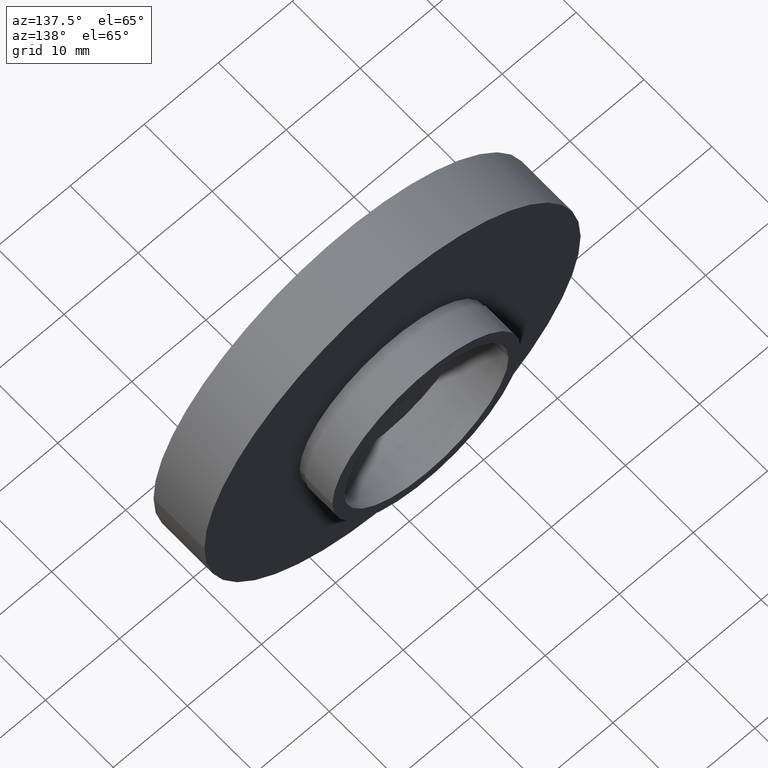
[diagram: clean part render]
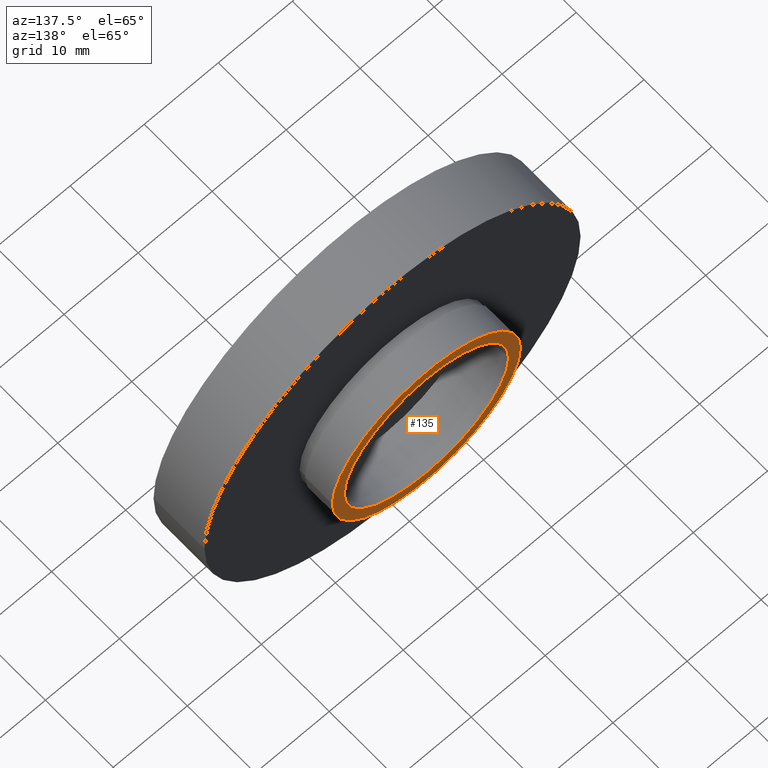
[diagram: same view with one face highlighted and labeled with its STEP entity id]
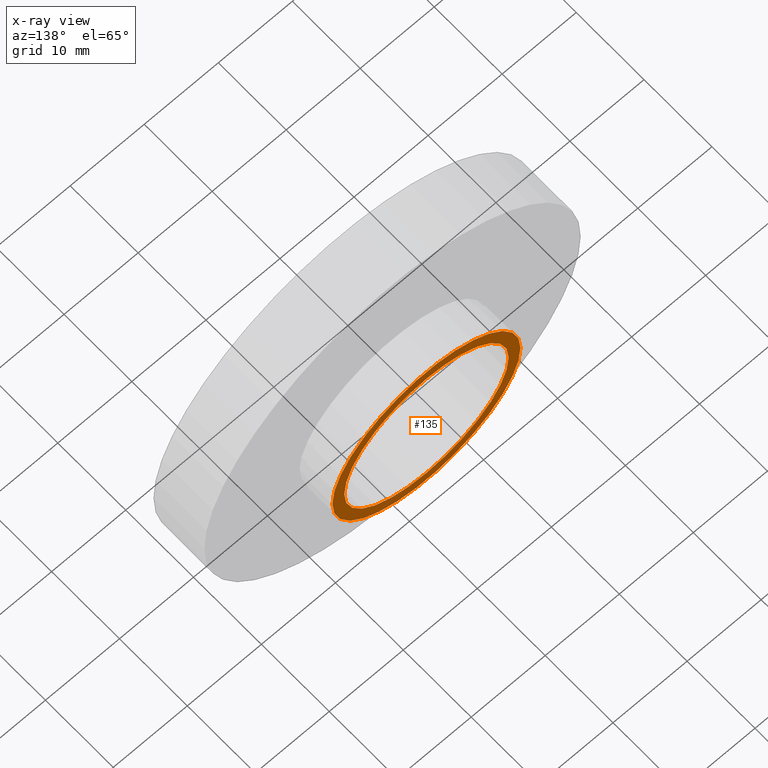
[diagram: x-ray of the same camera — body ghosted, the highlighted face saturated]
A machine part, auxiliary view. The second image highlights one B-rep face of the part: STEP entity #135.
The next image is the same camera in x-ray: the body ghosted, the highlighted face saturated — about 0% of this face is hidden behind the body in this view.
In plain terms, the highlighted planar face has unit normal (0, -1, 0).
Its self-contained STEP definition (entity closure, byte-faithful):
#41 = EDGE_LOOP ( 'NONE', ( #357, #198 ) ) ;
#51 = VERTEX_POINT ( 'NONE', #334 ) ;
#59 = EDGE_CURVE ( 'NONE', #582, #51, #372, .T. ) ;
#66 = CARTESIAN_POINT ( 'NONE',  ( -12.69999999999999900, 12.49999999999999500, 0.0000000000000000000 ) ) ;
#73 = DIRECTION ( 'NONE',  ( -1.224646799147351000E-016, 1.000000000000000000, -0.0000000000000000000 ) ) ;
#120 = CARTESIAN_POINT ( 'NONE',  ( 5.371323195044474300E-016, 12.49999999999999600, 0.0000000000000000000 ) ) ;
#135 = ADVANCED_FACE ( 'NONE', ( #600, #225 ), #211, .F. ) ;
#137 = EDGE_CURVE ( 'NONE', #363, #203, #462, .T. ) ;
#159 = DIRECTION ( 'NONE',  ( -1.000000000000000000, -1.365923996832131600E-016, 0.0000000000000000000 ) ) ;
#162 = DIRECTION ( 'NONE',  ( -1.224646799147351000E-016, 1.000000000000000000, -0.0000000000000000000 ) ) ;
#167 = CARTESIAN_POINT ( 'NONE',  ( 5.371323195044474300E-016, 12.49999999999999600, 0.0000000000000000000 ) ) ;
#182 = AXIS2_PLACEMENT_3D ( 'NONE', #120, #73, #376 ) ;
#190 = EDGE_LOOP ( 'NONE', ( #253, #542 ) ) ;
#193 = CIRCLE ( 'NONE', #362, 12.69999999999999900 ) ;
#198 = ORIENTED_EDGE ( 'NONE', *, *, #137, .T. ) ;
#203 = VERTEX_POINT ( 'NONE', #66 ) ;
#206 = DIRECTION ( 'NONE',  ( 1.000000000000000000, 1.224646799147351000E-016, 0.0000000000000000000 ) ) ;
#211 = PLANE ( 'NONE',  #461 ) ;
#225 = FACE_OUTER_BOUND ( 'NONE', #41, .T. ) ;
#230 = CARTESIAN_POINT ( 'NONE',  ( 11.10000000000000100, 12.49999999999999800, 0.0000000000000000000 ) ) ;
#243 = CARTESIAN_POINT ( 'NONE',  ( -11.10000000000000100, 12.49999999999999500, 0.0000000000000000000 ) ) ;
#253 = ORIENTED_EDGE ( 'NONE', *, *, #59, .F. ) ;
#289 = CARTESIAN_POINT ( 'NONE',  ( 5.371323195044474300E-016, 12.49999999999999600, 0.0000000000000000000 ) ) ;
#291 = EDGE_CURVE ( 'NONE', #203, #363, #193, .T. ) ;
#334 = CARTESIAN_POINT ( 'NONE',  ( 11.10000000000000100, 12.49999999999999800, 1.359357947053562400E-015 ) ) ;
#357 = ORIENTED_EDGE ( 'NONE', *, *, #291, .T. ) ;
#362 = AXIS2_PLACEMENT_3D ( 'NONE', #508, #466, #446 ) ;
#363 = VERTEX_POINT ( 'NONE', #505 ) ;
#372 = CIRCLE ( 'NONE', #510, 11.10000000000000100 ) ;
#376 = DIRECTION ( 'NONE',  ( -1.000000000000000000, -1.562813942321447500E-016, 0.0000000000000000000 ) ) ;
#446 = DIRECTION ( 'NONE',  ( -1.000000000000000000, -1.365923996832131600E-016, 0.0000000000000000000 ) ) ;
#461 = AXIS2_PLACEMENT_3D ( 'NONE', #230, #567, #206 ) ;
#462 = CIRCLE ( 'NONE', #469, 12.69999999999999900 ) ;
#466 = DIRECTION ( 'NONE',  ( -1.224646799147351000E-016, 1.000000000000000000, -0.0000000000000000000 ) ) ;
#469 = AXIS2_PLACEMENT_3D ( 'NONE', #167, #162, #159 ) ;
#505 = CARTESIAN_POINT ( 'NONE',  ( 12.69999999999999900, 12.49999999999999800, 1.555301434917138400E-015 ) ) ;
#508 = CARTESIAN_POINT ( 'NONE',  ( 5.371323195044474300E-016, 12.49999999999999600, 0.0000000000000000000 ) ) ;
#510 = AXIS2_PLACEMENT_3D ( 'NONE', #289, #613, #575 ) ;
#517 = EDGE_CURVE ( 'NONE', #51, #582, #595, .T. ) ;
#542 = ORIENTED_EDGE ( 'NONE', *, *, #517, .F. ) ;
#567 = DIRECTION ( 'NONE',  ( 1.224646799147351000E-016, -1.000000000000000000, 0.0000000000000000000 ) ) ;
#575 = DIRECTION ( 'NONE',  ( -1.000000000000000000, -1.562813942321447500E-016, 0.0000000000000000000 ) ) ;
#582 = VERTEX_POINT ( 'NONE', #243 ) ;
#595 = CIRCLE ( 'NONE', #182, 11.10000000000000100 ) ;
#600 = FACE_BOUND ( 'NONE', #190, .T. ) ;
#613 = DIRECTION ( 'NONE',  ( -1.224646799147351000E-016, 1.000000000000000000, -0.0000000000000000000 ) ) ;